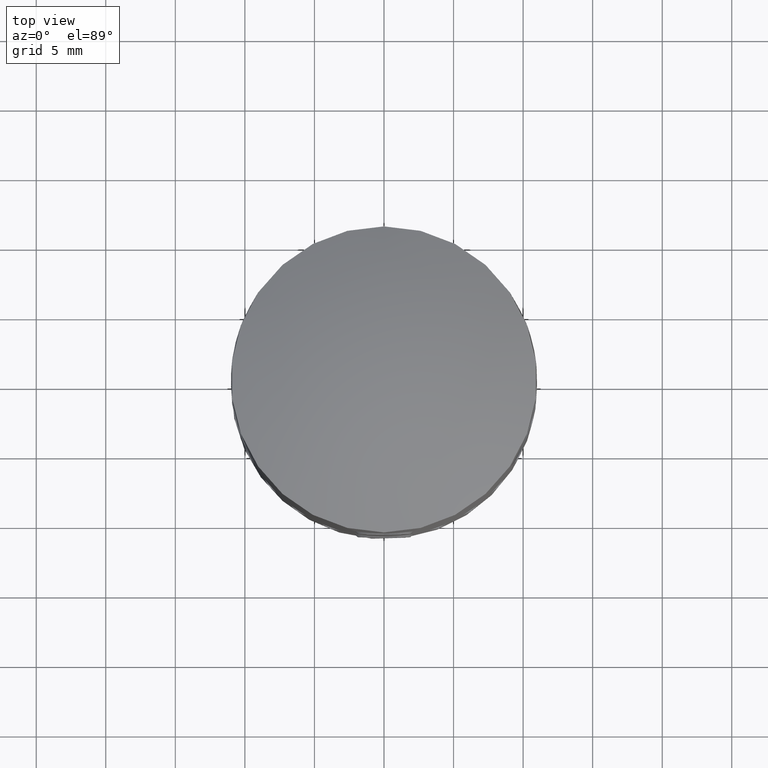
[diagram: clean part render]
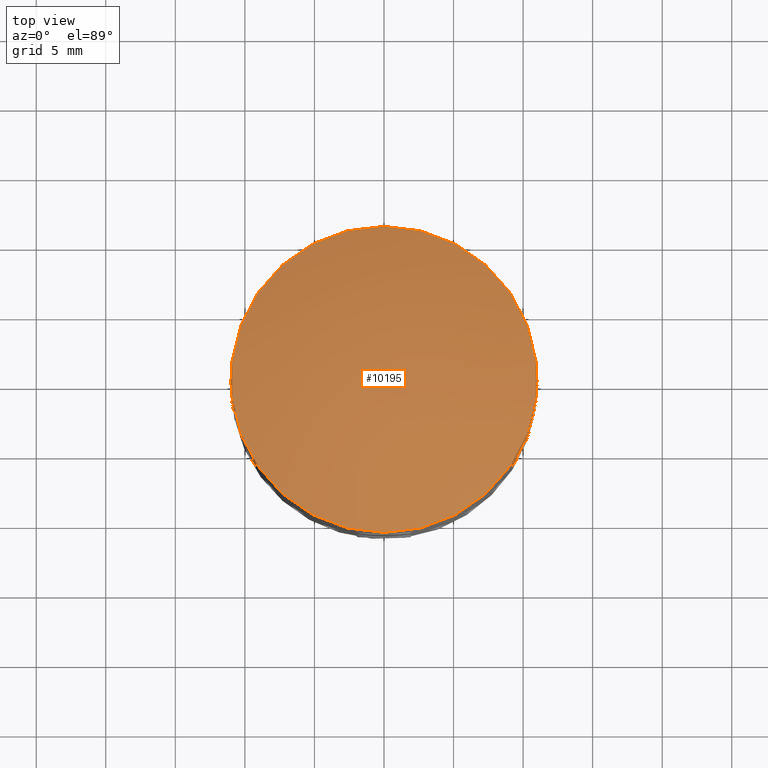
[diagram: same view with one face highlighted and labeled with its STEP entity id]
A machine part, top view. The second image highlights one B-rep face of the part: STEP entity #10195.
In plain terms, the highlighted spherical surface has radius 28 mm.
Its self-contained STEP definition (entity closure, byte-faithful):
#1219 = CARTESIAN_POINT ( 'NONE',  ( 0.000000000000000000, 10.99999999999999645, 23.74878637916746627 ) ) ;
#3357 = CARTESIAN_POINT ( 'NONE',  ( 0.000000000000000000, -7.499723097387590623E-16, 23.74878637916746627 ) ) ;
#4983 = FACE_OUTER_BOUND ( 'NONE', #21468, .T. ) ;
#10092 = VERTEX_POINT ( 'NONE', #1219 ) ;
#10195 = ADVANCED_FACE ( 'NONE', ( #4983 ), #11737, .T. ) ;
#11737 = SPHERICAL_SURFACE ( 'NONE', #20991, 28.00000000000000000 ) ;
#12390 = DIRECTION ( 'NONE',  ( 1.000000000000000000, 0.000000000000000000, -0.000000000000000000 ) ) ;
#12428 = ORIENTED_EDGE ( 'NONE', *, *, #16344, .F. ) ;
#12953 = CIRCLE ( 'NONE', #15718, 10.99999999999999645 ) ;
#13838 = DIRECTION ( 'NONE',  ( 0.000000000000000000, 1.000000000000000000, 1.084202172485504434E-16 ) ) ;
#15075 = DIRECTION ( 'NONE',  ( 0.000000000000000000, 1.000000000000000000, 0.000000000000000000 ) ) ;
#15718 = AXIS2_PLACEMENT_3D ( 'NONE', #3357, #19816, #15075 ) ;
#16344 = EDGE_CURVE ( 'NONE', #10092, #10092, #12953, .T. ) ;
#17334 = CARTESIAN_POINT ( 'NONE',  ( 0.000000000000000000, 0.000000000000000000, -2.000000000000001776 ) ) ;
#19816 = DIRECTION ( 'NONE',  ( -0.000000000000000000, 1.020538999289461417E-16, -1.000000000000000000 ) ) ;
#20991 = AXIS2_PLACEMENT_3D ( 'NONE', #17334, #12390, #13838 ) ;
#21468 = EDGE_LOOP ( 'NONE', ( #12428 ) ) ;